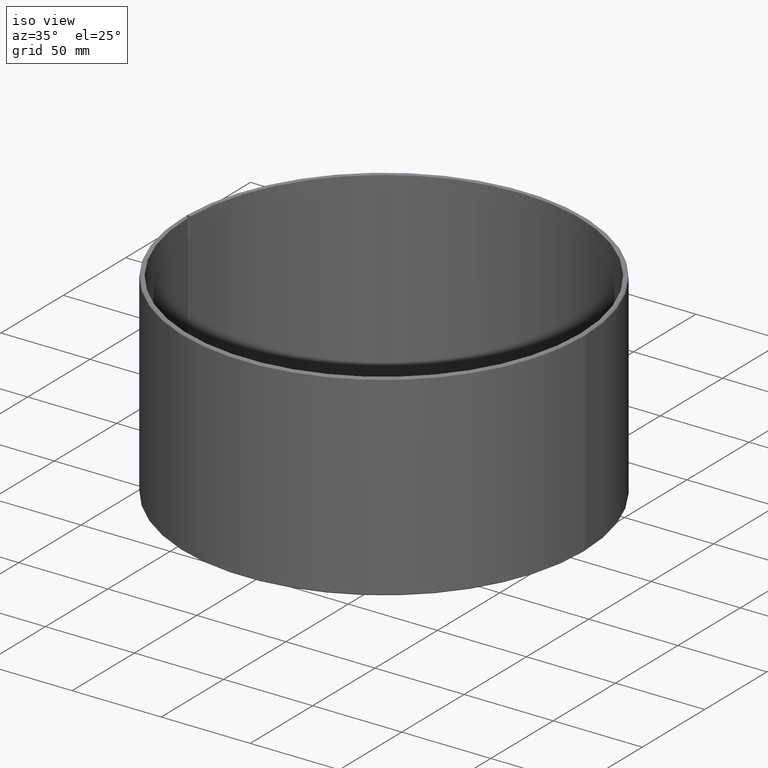
[diagram: clean part render]
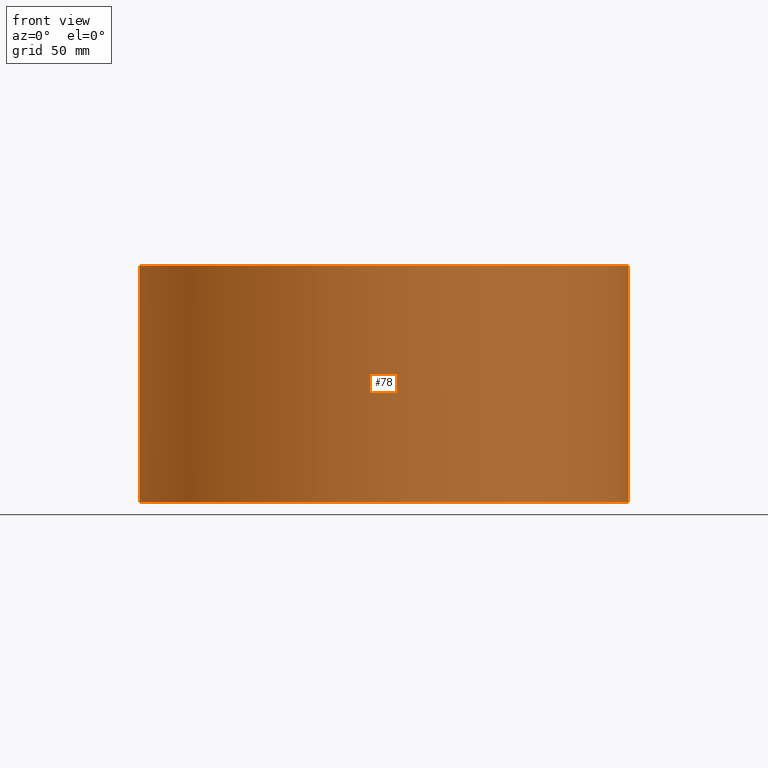
[diagram: tour spotlight — one face highlighted and labeled with its STEP entity id]
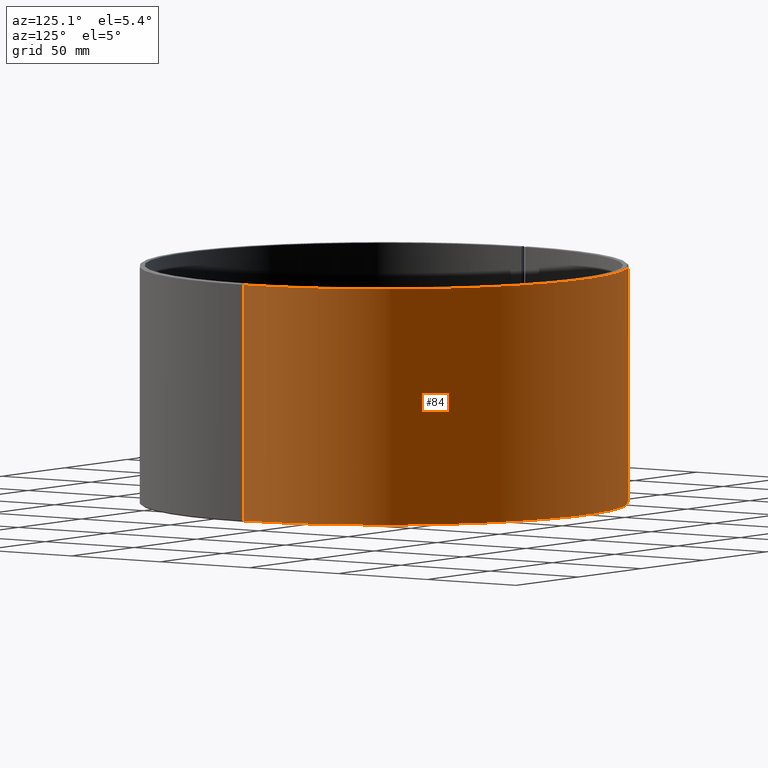
[diagram: tour spotlight — one face highlighted and labeled with its STEP entity id]
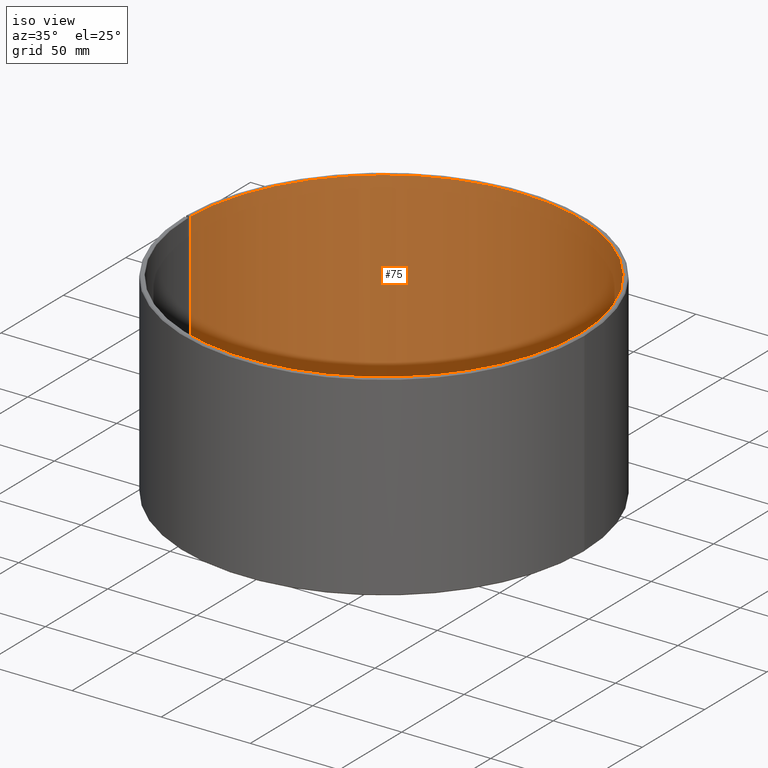
[diagram: tour spotlight — one face highlighted and labeled with its STEP entity id]
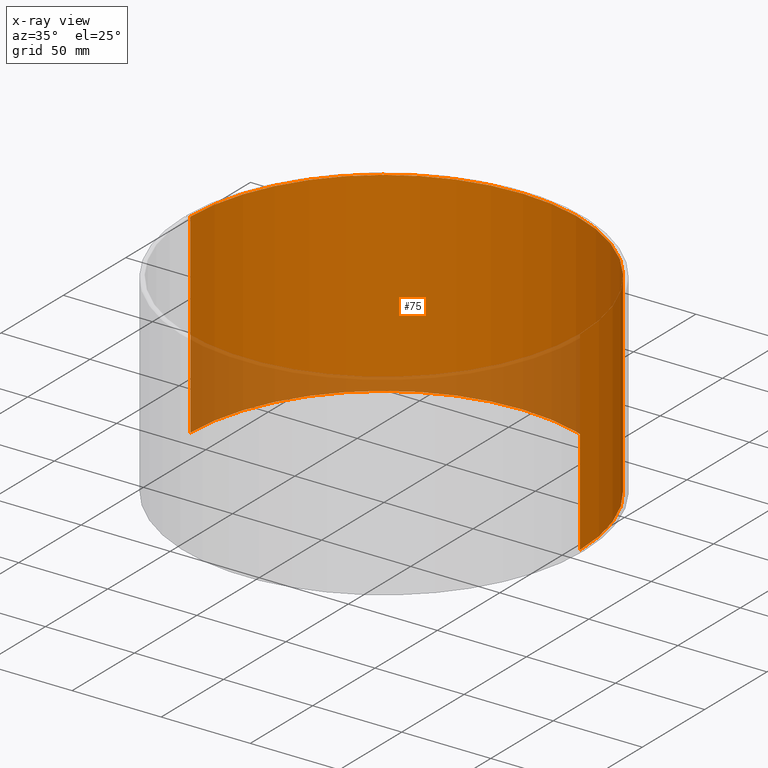
[diagram: x-ray of the same camera — body ghosted, this tour face saturated]
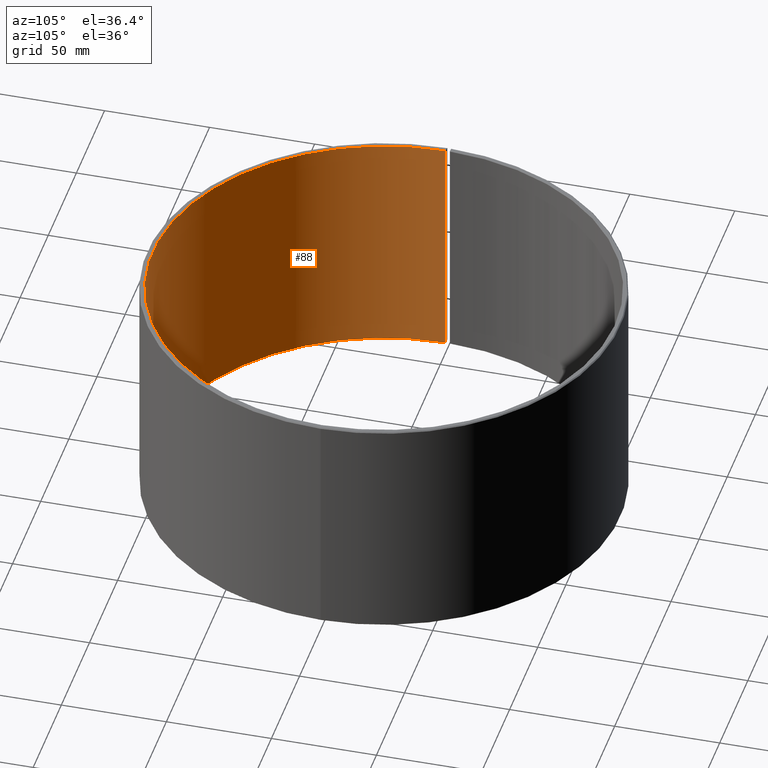
[diagram: tour spotlight — one face highlighted and labeled with its STEP entity id]
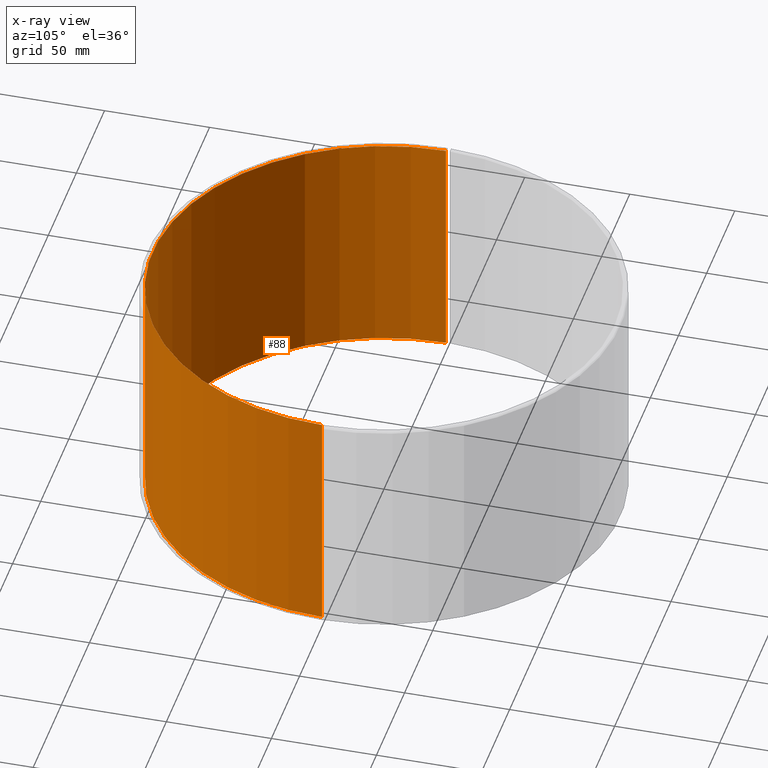
[diagram: x-ray of the same camera — body ghosted, this tour face saturated]
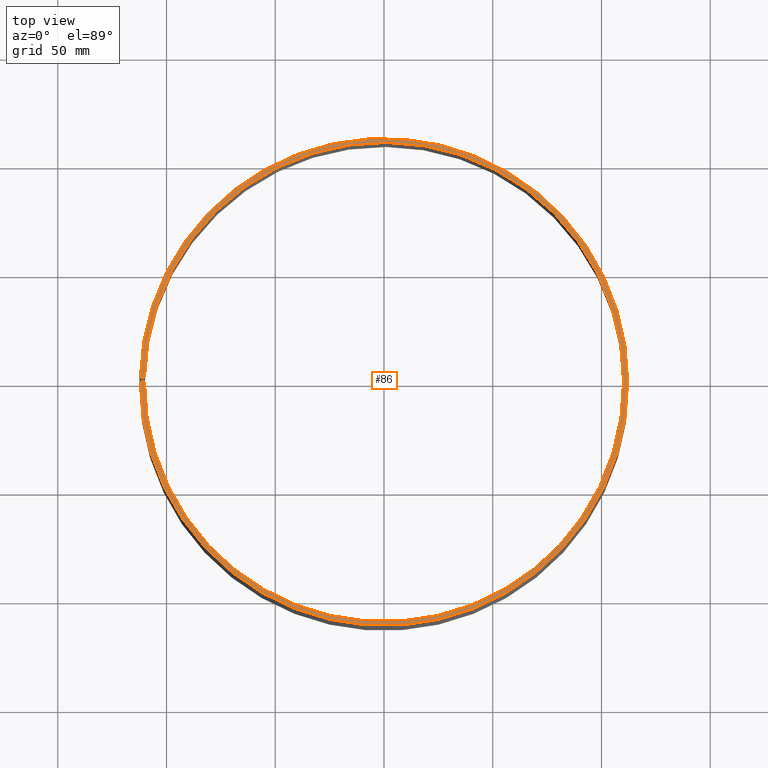
[diagram: tour spotlight — one face highlighted and labeled with its STEP entity id]
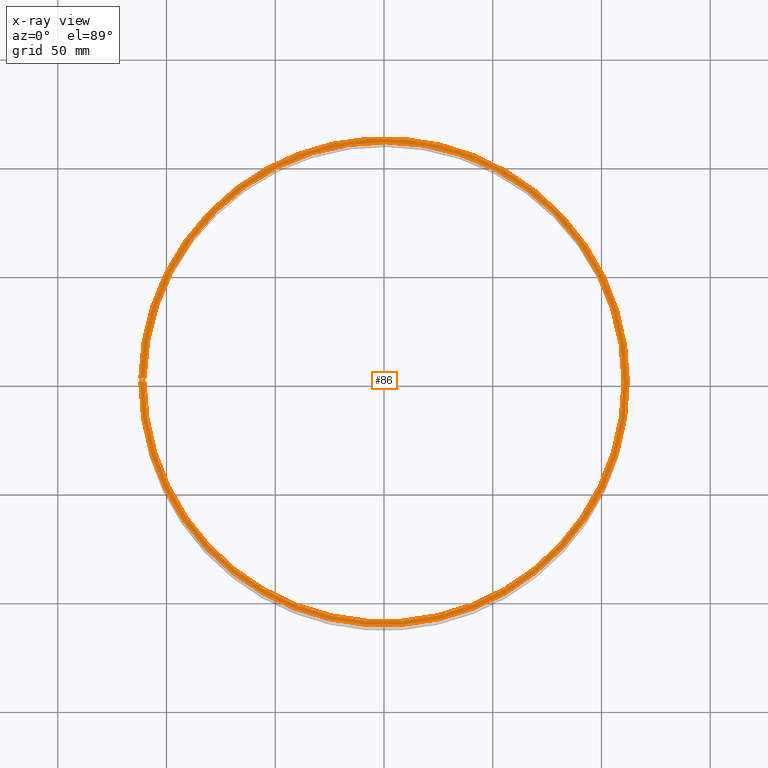
[diagram: x-ray of the same camera — body ghosted, this tour face saturated]
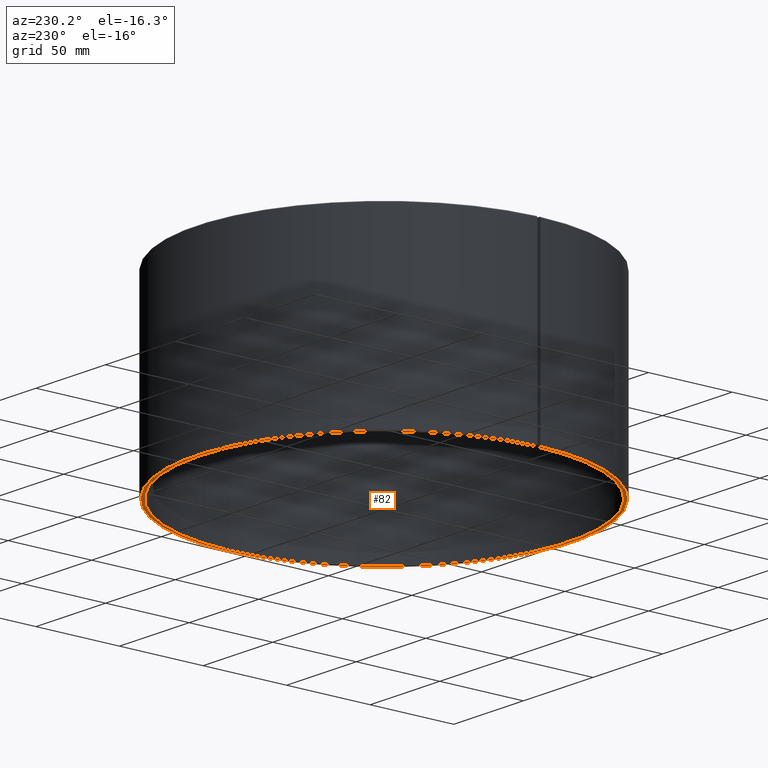
[diagram: tour spotlight — one face highlighted and labeled with its STEP entity id]
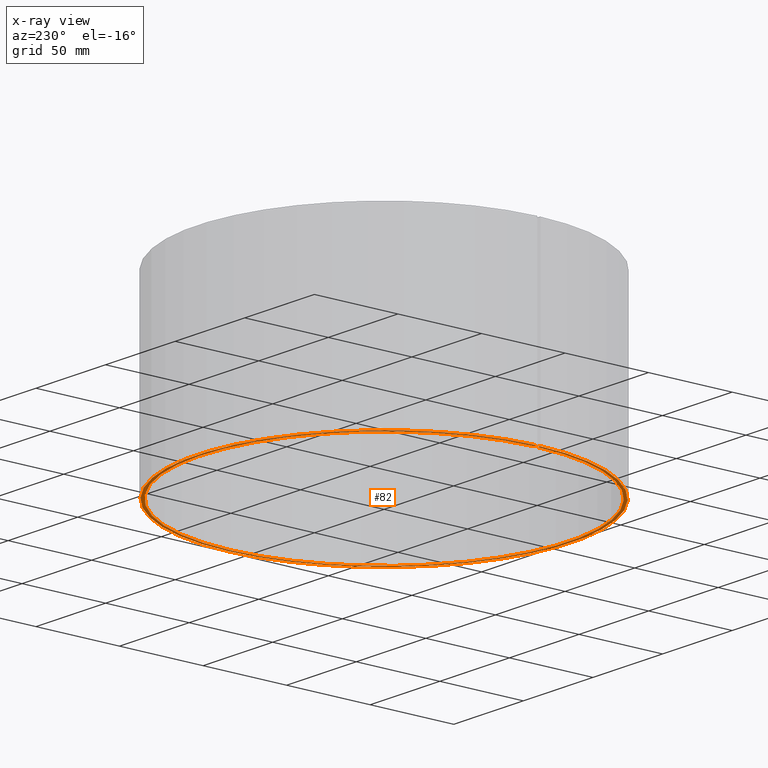
[diagram: x-ray of the same camera — body ghosted, this tour face saturated]
A machine part: a face-by-face anatomy tour. The part has 16 B-rep faces; the first image is the clean iso view, then the 6 largest visible faces are spotlighted one at a time (largest first), each with its STEP entity span.

Face 1 — front view, entity #78. In plain terms, the highlighted cylindrical surface (partial cylindrical patch) has radius 112.5 mm, axis along (0, -0, 1).
Definition (entity closure, byte-faithful):
#78=ADVANCED_FACE('',(#98),#99,.T.);
#98=FACE_OUTER_BOUND('',#130,.T.);
#99=CYLINDRICAL_SURFACE('',#131,112.5);
#130=EDGE_LOOP('',(#177,#178,#179,#180));
#131=AXIS2_PLACEMENT_3D('',#181,#182,#183);
#177=ORIENTED_EDGE('',*,*,#291,.F.);
#178=ORIENTED_EDGE('',*,*,#290,.F.);
#179=ORIENTED_EDGE('',*,*,#292,.F.);
#180=ORIENTED_EDGE('',*,*,#293,.T.);
#181=CARTESIAN_POINT('',(3.16424264710883E-014,-3.53787331373911E-014,55.0));
#182=DIRECTION('',(5.48707263966372E-016,-6.09939603923743E-016,1.0));
#183=DIRECTION('',(-1.0,-3.21624529935327E-016,5.48707263966372E-016));
#290=EDGE_CURVE('',#336,#332,#338,.T.);
#291=EDGE_CURVE('',#332,#339,#340,.T.);
#292=EDGE_CURVE('',#341,#336,#342,.T.);
#293=EDGE_CURVE('',#341,#339,#343,.T.);
#332=VERTEX_POINT('',#398);
#336=VERTEX_POINT('',#403);
#338=CIRCLE('',#406,112.5);
#339=VERTEX_POINT('',#407);
#340=LINE('',#408,#409);
#341=VERTEX_POINT('',#410);
#342=LINE('',#411,#412);
#343=CIRCLE('',#413,112.5);
#398=CARTESIAN_POINT('',(112.5,-4.62149584239184E-014,109.5));
#403=CARTESIAN_POINT('',(-112.5,-1.04468896300299E-013,109.5));
#406=AXIS2_PLACEMENT_3D('',#482,#483,#484);
#407=CARTESIAN_POINT('',(112.5,2.02466568649791E-014,0.499999999999948));
#408=CARTESIAN_POINT('',(112.5,-1.29732500100745E-014,54.9999999999999));
#409=VECTOR('',#485,1.0);
#410=CARTESIAN_POINT('',(-112.5,-3.79984663802129E-014,0.500000000000065));
#411=CARTESIAN_POINT('',(-112.5,-3.79984663802129E-014,0.500000000000065));
#412=VECTOR('',#486,10.0);
#413=AXIS2_PLACEMENT_3D('',#487,#488,#489);
#482=CARTESIAN_POINT('',(6.15469723572557E-014,-6.8613948097434E-014,109.5));
#483=DIRECTION('',(5.48707263966372E-016,-6.09939603923743E-016,1.0));
#484=DIRECTION('',(-1.0,-3.21624529935327E-016,5.48707263966372E-016));
#485=DIRECTION('',(-5.48707263966372E-016,6.09939603923743E-016,-1.0));
#486=DIRECTION('',(5.48707263966372E-016,-6.09820457982439E-016,1.0));
#487=CARTESIAN_POINT('',(1.73788058492098E-015,-2.1435181773482E-015,0.500000000000009));
#488=DIRECTION('',(5.48707263966372E-016,-6.09939603923743E-016,1.0));
#489=DIRECTION('',(-1.0,-3.21624529935327E-016,5.48707263966372E-016));

Face 2 — auxiliary view, entity #84. In plain terms, the highlighted cylindrical surface (partial cylindrical patch) has radius 112.5 mm, axis along (0, -0, 1).
Definition (entity closure, byte-faithful):
#84=ADVANCED_FACE('',(#110),#111,.T.);
#110=FACE_OUTER_BOUND('',#142,.T.);
#111=CYLINDRICAL_SURFACE('',#143,112.5);
#142=EDGE_LOOP('',(#221,#222,#223,#224));
#143=AXIS2_PLACEMENT_3D('',#225,#226,#227);
#221=ORIENTED_EDGE('',*,*,#291,.T.);
#222=ORIENTED_EDGE('',*,*,#307,.T.);
#223=ORIENTED_EDGE('',*,*,#308,.T.);
#224=ORIENTED_EDGE('',*,*,#309,.F.);
#225=CARTESIAN_POINT('',(3.16424264710883E-014,-3.53787331373911E-014,55.0));
#226=DIRECTION('',(5.48707263966372E-016,-6.09939603923743E-016,1.0));
#227=DIRECTION('',(-1.0,-3.21624529935327E-016,5.48707263966372E-016));
#291=EDGE_CURVE('',#332,#339,#340,.T.);
#307=EDGE_CURVE('',#339,#363,#365,.T.);
#308=EDGE_CURVE('',#363,#366,#367,.T.);
#309=EDGE_CURVE('',#332,#366,#368,.T.);
#332=VERTEX_POINT('',#398);
#339=VERTEX_POINT('',#407);
#340=LINE('',#408,#409);
#363=VERTEX_POINT('',#440);
#365=CIRCLE('',#443,112.5);
#366=VERTEX_POINT('',#444);
#367=LINE('',#445,#446);
#368=CIRCLE('',#447,112.5);
#398=CARTESIAN_POINT('',(112.5,-4.62149584239184E-014,109.5));
#407=CARTESIAN_POINT('',(112.5,2.02466568649791E-014,0.499999999999948));
#408=CARTESIAN_POINT('',(112.5,-1.29732500100745E-014,54.9999999999999));
#409=VECTOR('',#485,1.0);
#440=CARTESIAN_POINT('',(-112.482865705094,1.96339572419436,0.500000000000072));
#443=AXIS2_PLACEMENT_3D('',#513,#514,#515);
#444=CARTESIAN_POINT('',(-112.482865705094,1.9633957241943,109.5));
#445=CARTESIAN_POINT('',(-112.482865705094,1.96339572419436,0.500000000000066));
#446=VECTOR('',#516,10.0);
#447=AXIS2_PLACEMENT_3D('',#517,#518,#519);
#485=DIRECTION('',(-5.48707263966372E-016,6.09939603923743E-016,-1.0));
#513=CARTESIAN_POINT('',(1.73788058492098E-015,-2.1435181773482E-015,0.500000000000009));
#514=DIRECTION('',(5.48707263966372E-016,-6.09939603923743E-016,1.0));
#515=DIRECTION('',(-1.0,-3.21624529935327E-016,5.48707263966372E-016));
#516=DIRECTION('',(5.48709343349765E-016,-6.09820476128943E-016,1.0));
#517=CARTESIAN_POINT('',(6.15469723572557E-014,-6.8613948097434E-014,109.5));
#518=DIRECTION('',(5.48707263966372E-016,-6.09939603923743E-016,1.0));
#519=DIRECTION('',(-1.0,-3.21624529935327E-016,5.48707263966372E-016));

Face 3 — iso view, entity #75. An x-ray twin of the same camera follows (body ghosted, this face saturated) — the face is partly hidden behind the body. In plain terms, the highlighted cylindrical surface (partial cylindrical patch) has radius 110 mm, axis along (0, -0, 1).
Definition (entity closure, byte-faithful):
#75=ADVANCED_FACE('',(#92),#93,.F.);
#92=FACE_OUTER_BOUND('',#124,.T.);
#93=CYLINDRICAL_SURFACE('',#125,110.0);
#124=EDGE_LOOP('',(#156,#157,#158,#159));
#125=AXIS2_PLACEMENT_3D('',#160,#161,#162);
#156=ORIENTED_EDGE('',*,*,#280,.F.);
#157=ORIENTED_EDGE('',*,*,#281,.T.);
#158=ORIENTED_EDGE('',*,*,#282,.T.);
#159=ORIENTED_EDGE('',*,*,#283,.F.);
#160=CARTESIAN_POINT('',(3.16424264710883E-014,-3.53787331373911E-014,55.0));
#161=DIRECTION('',(5.48707263966372E-016,-6.09939603923743E-016,1.0));
#162=DIRECTION('',(-1.0,-3.21624529935327E-016,5.48707263966372E-016));
#280=EDGE_CURVE('',#318,#319,#320,.T.);
#281=EDGE_CURVE('',#318,#321,#322,.T.);
#282=EDGE_CURVE('',#321,#323,#324,.T.);
#283=EDGE_CURVE('',#319,#323,#325,.T.);
#318=VERTEX_POINT('',#380);
#319=VERTEX_POINT('',#381);
#320=LINE('',#382,#383);
#321=VERTEX_POINT('',#384);
#322=CIRCLE('',#385,110.0);
#323=VERTEX_POINT('',#386);
#324=LINE('',#387,#388);
#325=CIRCLE('',#389,110.0);
#380=CARTESIAN_POINT('',(110.0,-4.6864853540363E-014,109.8));
#381=CARTESIAN_POINT('',(110.0,1.99225542701111E-014,0.199999999999938));
#382=CARTESIAN_POINT('',(110.0,-1.34711496351259E-014,54.9999999999999));
#383=VECTOR('',#464,1.0);
#384=CARTESIAN_POINT('',(-109.983246467203,1.91976470810109,109.8));
#385=AXIS2_PLACEMENT_3D('',#465,#466,#467);
#386=CARTESIAN_POINT('',(-109.983246467203,1.91976470810115,0.200000000000059));
#387=CARTESIAN_POINT('',(-109.983246467203,1.91976470810109,109.8));
#388=VECTOR('',#468,10.0);
#389=AXIS2_PLACEMENT_3D('',#469,#470,#471);
#464=DIRECTION('',(-5.48707263966372E-016,6.09939603923743E-016,-1.0));
#465=CARTESIAN_POINT('',(6.17115845364456E-014,-6.87785602766239E-014,109.8));
#466=DIRECTION('',(5.48707263966372E-016,-6.09939603923743E-016,1.0));
#467=DIRECTION('',(-1.0,-3.21624529935327E-016,5.48707263966372E-016));
#468=DIRECTION('',(-5.48715182249221E-016,6.09485965803137E-016,-1.0));
#469=CARTESIAN_POINT('',(1.57326840573107E-015,-1.97890599815828E-015,0.199999999999998));
#470=DIRECTION('',(5.48707263966372E-016,-6.09939603923743E-016,1.0));
#471=DIRECTION('',(-1.0,-3.21624529935327E-016,5.48707263966372E-016));

Face 4 — auxiliary view, entity #88. An x-ray twin of the same camera follows (body ghosted, this face saturated) — the face is partly hidden behind the body. In plain terms, the highlighted cylindrical surface (partial cylindrical patch) has radius 110 mm, axis along (0, -0, 1).
Definition (entity closure, byte-faithful):
#88=ADVANCED_FACE('',(#118),#119,.F.);
#118=FACE_OUTER_BOUND('',#150,.T.);
#119=CYLINDRICAL_SURFACE('',#151,110.0);
#150=EDGE_LOOP('',(#251,#252,#253,#254));
#151=AXIS2_PLACEMENT_3D('',#255,#256,#257);
#251=ORIENTED_EDGE('',*,*,#280,.T.);
#252=ORIENTED_EDGE('',*,*,#302,.F.);
#253=ORIENTED_EDGE('',*,*,#317,.F.);
#254=ORIENTED_EDGE('',*,*,#315,.T.);
#255=CARTESIAN_POINT('',(3.16424264710883E-014,-3.53787331373911E-014,55.0));
#256=DIRECTION('',(5.48707263966372E-016,-6.09939603923743E-016,1.0));
#257=DIRECTION('',(-1.0,-3.21624529935327E-016,5.48707263966372E-016));
#280=EDGE_CURVE('',#318,#319,#320,.T.);
#302=EDGE_CURVE('',#356,#319,#358,.T.);
#315=EDGE_CURVE('',#376,#318,#377,.T.);
#317=EDGE_CURVE('',#376,#356,#379,.T.);
#318=VERTEX_POINT('',#380);
#319=VERTEX_POINT('',#381);
#320=LINE('',#382,#383);
#356=VERTEX_POINT('',#430);
#358=CIRCLE('',#433,110.0);
#376=VERTEX_POINT('',#458);
#377=CIRCLE('',#459,110.0);
#379=LINE('',#462,#463);
#380=CARTESIAN_POINT('',(110.0,-4.6864853540363E-014,109.8));
#381=CARTESIAN_POINT('',(110.0,1.99225542701111E-014,0.199999999999938));
#382=CARTESIAN_POINT('',(110.0,-1.34711496351259E-014,54.9999999999999));
#383=VECTOR('',#464,1.0);
#430=CARTESIAN_POINT('',(-110.0,-3.74318235386038E-014,0.200000000000062));
#433=AXIS2_PLACEMENT_3D('',#504,#505,#506);
#458=CARTESIAN_POINT('',(-110.0,-1.04231477817069E-013,109.8));
#459=AXIS2_PLACEMENT_3D('',#529,#530,#531);
#462=CARTESIAN_POINT('',(-110.0,-1.04231477817069E-013,109.8));
#463=VECTOR('',#533,10.0);
#464=DIRECTION('',(-5.48707263966372E-016,6.09939603923743E-016,-1.0));
#504=CARTESIAN_POINT('',(1.57326840573107E-015,-1.97890599815828E-015,0.199999999999998));
#505=DIRECTION('',(5.48707263966372E-016,-6.09939603923743E-016,1.0));
#506=DIRECTION('',(-1.0,-3.21624529935327E-016,5.48707263966372E-016));
#529=CARTESIAN_POINT('',(6.17115845364456E-014,-6.87785602766239E-014,109.8));
#530=DIRECTION('',(5.48707263966372E-016,-6.09939603923743E-016,1.0));
#531=DIRECTION('',(-1.0,-3.21624529935327E-016,5.48707263966372E-016));
#533=DIRECTION('',(-5.48707263966372E-016,6.09485896701329E-016,-1.0));

Face 5 — top view, entity #86. An x-ray twin of the same camera follows (body ghosted, this face saturated) — the face is partly hidden behind the body. In plain terms, the highlighted planar face has unit normal (0, -0, 1).
Definition (entity closure, byte-faithful):
#86=ADVANCED_FACE('',(#114),#115,.T.);
#114=FACE_OUTER_BOUND('',#146,.T.);
#115=PLANE('',#147);
#146=EDGE_LOOP('',(#235,#236,#237,#238,#239,#240));
#147=AXIS2_PLACEMENT_3D('',#241,#242,#243);
#235=ORIENTED_EDGE('',*,*,#312,.T.);
#236=ORIENTED_EDGE('',*,*,#285,.F.);
#237=ORIENTED_EDGE('',*,*,#313,.F.);
#238=ORIENTED_EDGE('',*,*,#314,.F.);
#239=ORIENTED_EDGE('',*,*,#288,.T.);
#240=ORIENTED_EDGE('',*,*,#311,.T.);
#241=CARTESIAN_POINT('',(-111.1,-1.04651339524282E-013,110.0));
#242=DIRECTION('',(5.48707263966372E-016,-6.09939603923743E-016,1.0));
#243=DIRECTION('',(-1.0,-3.21624529935327E-016,5.48707263966372E-016));
#285=EDGE_CURVE('',#326,#328,#329,.T.);
#288=EDGE_CURVE('',#334,#331,#335,.T.);
#311=EDGE_CURVE('',#331,#369,#371,.T.);
#312=EDGE_CURVE('',#369,#328,#372,.T.);
#313=EDGE_CURVE('',#373,#326,#374,.T.);
#314=EDGE_CURVE('',#334,#373,#375,.T.);
#326=VERTEX_POINT('',#390);
#328=VERTEX_POINT('',#393);
#329=CIRCLE('',#394,110.2);
#331=VERTEX_POINT('',#397);
#334=VERTEX_POINT('',#401);
#335=CIRCLE('',#402,112.0);
#369=VERTEX_POINT('',#448);
#371=CIRCLE('',#451,112.0);
#372=LINE('',#452,#453);
#373=VERTEX_POINT('',#454);
#374=CIRCLE('',#455,110.2);
#375=LINE('',#456,#457);
#390=CARTESIAN_POINT('',(110.2,-4.69470094911437E-014,110.0));
#393=CARTESIAN_POINT('',(-110.183216006234,1.92325518938854,110.0));
#394=AXIS2_PLACEMENT_3D('',#473,#474,#475);
#397=CARTESIAN_POINT('',(112.0,-4.65977066121002E-014,110.0));
#401=CARTESIAN_POINT('',(-112.0,-1.03996709985023E-013,110.0));
#402=AXIS2_PLACEMENT_3D('',#478,#479,#480);
#448=CARTESIAN_POINT('',(-111.982941857516,1.95466952097565,110.0));
#451=AXIS2_PLACEMENT_3D('',#521,#522,#523);
#452=CARTESIAN_POINT('',(-111.982941857516,1.95466952097565,110.0));
#453=VECTOR('',#524,10.0);
#454=CARTESIAN_POINT('',(-110.2,-1.04195746038916E-013,110.0));
#455=AXIS2_PLACEMENT_3D('',#525,#526,#527);
#456=CARTESIAN_POINT('',(-112.0,-1.03996709985023E-013,110.0));
#457=VECTOR('',#528,10.0);
#473=CARTESIAN_POINT('',(6.18213259892389E-014,-6.88883017294172E-014,110.0));
#474=DIRECTION('',(5.48707263966372E-016,-6.09939603923743E-016,1.0));
#475=DIRECTION('',(-1.0,-3.21624529935327E-016,5.48707263966372E-016));
#478=CARTESIAN_POINT('',(6.18213259892389E-014,-6.88883017294172E-014,110.0));
#479=DIRECTION('',(5.48707263966372E-016,-6.09939603923743E-016,1.0));
#480=DIRECTION('',(-1.0,-3.21624529935327E-016,5.48707263966372E-016));
#521=CARTESIAN_POINT('',(6.18213259892389E-014,-6.88883017294172E-014,110.0));
#522=DIRECTION('',(5.48707263966372E-016,-6.09939603923743E-016,1.0));
#523=DIRECTION('',(-1.0,-3.21624529935327E-016,5.48707263966372E-016));
#524=DIRECTION('',(0.999847695156391,-0.0174524064372832,-5.5926860706222E-016));
#525=CARTESIAN_POINT('',(6.18213259892389E-014,-6.88883017294172E-014,110.0));
#526=DIRECTION('',(5.48707263966372E-016,-6.09939603923743E-016,1.0));
#527=DIRECTION('',(-1.0,-3.21624529935327E-016,5.48707263966372E-016));
#528=DIRECTION('',(1.0,3.21624529935327E-016,-5.48707263966372E-016));

Face 6 — auxiliary view, entity #82. An x-ray twin of the same camera follows (body ghosted, this face saturated) — the face is partly hidden behind the body. In plain terms, the highlighted planar face has unit normal (-0, 0, -1).
Definition (entity closure, byte-faithful):
#82=ADVANCED_FACE('',(#106),#107,.T.);
#106=FACE_OUTER_BOUND('',#138,.T.);
#107=PLANE('',#139);
#138=EDGE_LOOP('',(#205,#206,#207,#208,#209,#210));
#139=AXIS2_PLACEMENT_3D('',#211,#212,#213);
#205=ORIENTED_EDGE('',*,*,#303,.T.);
#206=ORIENTED_EDGE('',*,*,#304,.F.);
#207=ORIENTED_EDGE('',*,*,#296,.F.);
#208=ORIENTED_EDGE('',*,*,#305,.F.);
#209=ORIENTED_EDGE('',*,*,#300,.T.);
#210=ORIENTED_EDGE('',*,*,#299,.T.);
#211=CARTESIAN_POINT('',(-111.1,-3.763220234023E-014,7.41080382700928E-014));
#212=DIRECTION('',(-6.57732292252552E-016,6.09939603923743E-016,-1.0));
#213=DIRECTION('',(1.0,3.21624529935328E-016,-6.57732292252552E-016));
#296=EDGE_CURVE('',#346,#344,#348,.T.);
#299=EDGE_CURVE('',#349,#351,#353,.T.);
#300=EDGE_CURVE('',#354,#349,#355,.T.);
#303=EDGE_CURVE('',#351,#359,#360,.T.);
#304=EDGE_CURVE('',#344,#359,#361,.T.);
#305=EDGE_CURVE('',#354,#346,#362,.T.);
#344=VERTEX_POINT('',#414);
#346=VERTEX_POINT('',#417);
#348=CIRCLE('',#420,112.0);
#349=VERTEX_POINT('',#421);
#351=VERTEX_POINT('',#424);
#353=CIRCLE('',#427,110.2);
#354=VERTEX_POINT('',#428);
#355=CIRCLE('',#429,110.2);
#359=VERTEX_POINT('',#434);
#360=LINE('',#435,#436);
#361=CIRCLE('',#437,112.0);
#362=LINE('',#438,#439);
#414=CARTESIAN_POINT('',(112.0,2.04520467419307E-014,-4.14573213331731E-014));
#417=CARTESIAN_POINT('',(-112.0,-3.69775728009708E-014,7.46999973331201E-014));
#420=AXIS2_PLACEMENT_3D('',#492,#493,#494);
#421=CARTESIAN_POINT('',(110.2,2.00843741609E-014,-4.04696482580336E-014));
#424=CARTESIAN_POINT('',(-110.183216006234,1.92325518938861,8.15756581149714E-014));
#427=AXIS2_PLACEMENT_3D('',#497,#498,#499);
#428=CARTESIAN_POINT('',(-110.2,-3.7176608854864E-014,7.35160792070655E-014));
#429=AXIS2_PLACEMENT_3D('',#500,#501,#502);
#434=CARTESIAN_POINT('',(-111.982941857516,1.95466952097572,8.25823416076834E-014));
#435=CARTESIAN_POINT('',(-110.183216006234,1.92325518938861,7.46864070822239E-014));
#436=VECTOR('',#507,10.0);
#437=AXIS2_PLACEMENT_3D('',#508,#509,#510);
#438=CARTESIAN_POINT('',(-110.2,-3.7176608854864E-014,7.35160792070655E-014));
#439=VECTOR('',#511,10.0);
#492=CARTESIAN_POINT('',(1.4635269529378E-015,-1.86916454536502E-015,2.0003700112161E-014));
#493=DIRECTION('',(5.48707263966372E-016,-6.09939603923743E-016,1.0));
#494=DIRECTION('',(-1.0,-3.21624529935327E-016,5.48707263966372E-016));
#497=CARTESIAN_POINT('',(1.4635269529378E-015,-1.86916454536502E-015,2.0003700112161E-014));
#498=DIRECTION('',(5.48707263966372E-016,-6.09939603923743E-016,1.0));
#499=DIRECTION('',(-1.0,-3.21624529935327E-016,5.48707263966372E-016));
#500=CARTESIAN_POINT('',(1.4635269529378E-015,-1.86916454536502E-015,2.0003700112161E-014));
#501=DIRECTION('',(5.48707263966372E-016,-6.09939603923743E-016,1.0));
#502=DIRECTION('',(-1.0,-3.21624529935327E-016,5.48707263966372E-016));
#507=DIRECTION('',(-0.999847695156391,0.0174524064372832,6.68293635348399E-016));
#508=CARTESIAN_POINT('',(1.4635269529378E-015,-1.86916454536502E-015,2.0003700112161E-014));
#509=DIRECTION('',(5.48707263966372E-016,-6.09939603923743E-016,1.0));
#510=DIRECTION('',(-1.0,-3.21624529935327E-016,5.48707263966372E-016));
#511=DIRECTION('',(-1.0,-3.21624529935328E-016,6.57732292252552E-016));